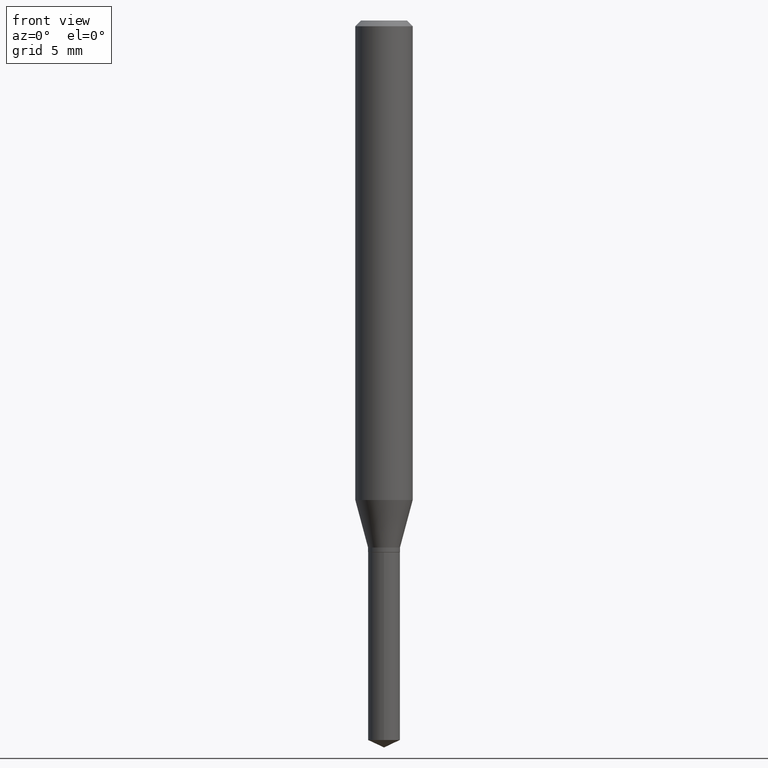
[diagram: clean part render]
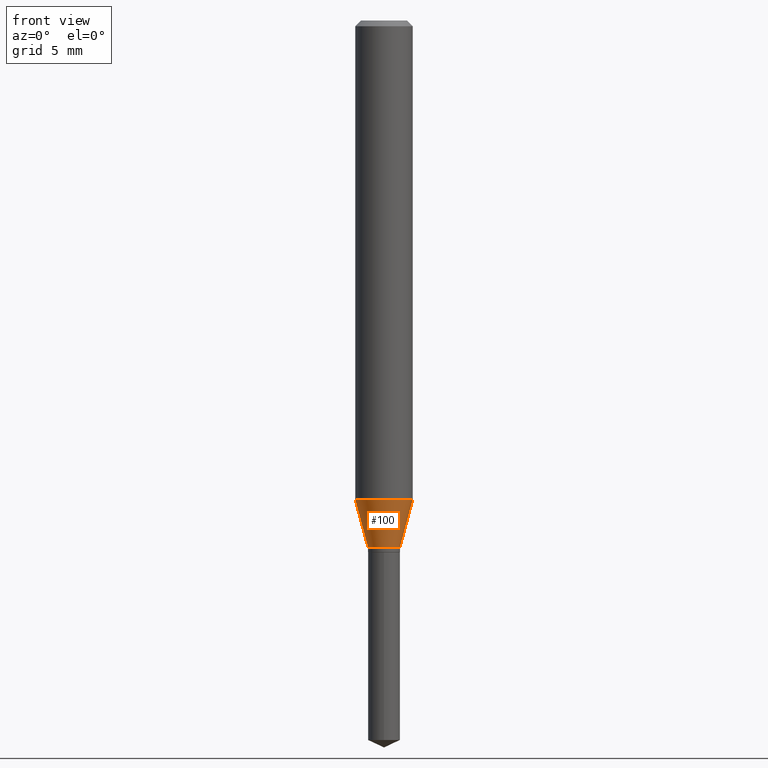
[diagram: same view with one face highlighted and labeled with its STEP entity id]
A machine part, front view. The second image highlights one B-rep face of the part: STEP entity #100.
In plain terms, the highlighted conical surface has half-angle 15 deg.
Its self-contained STEP definition (entity closure, byte-faithful):
#9 = ORIENTED_EDGE ( 'NONE', *, *, #81, .T. ) ;
#18 = CARTESIAN_POINT ( 'NONE',  ( 0.05905000000000011628, -3.857808499570329297E-15, -0.9868202688416950474 ) ) ;
#25 = CARTESIAN_POINT ( 'NONE',  ( -0.03284999999999999726, -3.553447371412082977E-15, -1.084600000000000009 ) ) ;
#27 = DIRECTION ( 'NONE',  ( -2.445468806185136597E-29, 3.491481338843145583E-15, 1.000000000000000000 ) ) ;
#32 = DIRECTION ( 'NONE',  ( 1.000000000000000000, -6.982962677686266711E-15, 0.000000000000000000 ) ) ;
#45 = EDGE_CURVE ( 'NONE', #268, #114, #254, .T. ) ;
#47 = ORIENTED_EDGE ( 'NONE', *, *, #45, .T. ) ;
#63 = DIRECTION ( 'NONE',  ( -0.2588190451025211836, 5.211531920934547886E-15, 0.9659258262890679791 ) ) ;
#72 = CARTESIAN_POINT ( 'NONE',  ( 0.03284999999999999726, -4.016250984071269671E-15, -1.084600000000000009 ) ) ;
#81 = EDGE_CURVE ( 'NONE', #340, #268, #414, .T. ) ;
#90 = VECTOR ( 'NONE', #178, 39.37007874015748854 ) ;
#96 = LINE ( 'NONE', #25, #237 ) ;
#100 = ADVANCED_FACE ( 'NONE', ( #431 ), #265, .T. ) ;
#103 = CARTESIAN_POINT ( 'NONE',  ( -0.05905000000000011628, -3.025889067986614883E-15, -0.9868202688416950474 ) ) ;
#114 = VERTEX_POINT ( 'NONE', #18 ) ;
#123 = DIRECTION ( 'NONE',  ( -2.445468806185136597E-29, 3.491481338843145583E-15, 1.000000000000000000 ) ) ;
#140 = EDGE_CURVE ( 'NONE', #340, #308, #96, .T. ) ;
#150 = ORIENTED_EDGE ( 'NONE', *, *, #140, .F. ) ;
#152 = CARTESIAN_POINT ( 'NONE',  ( -0.03284999999999999726, -3.569857333704645111E-15, -1.084600000000000009 ) ) ;
#154 = AXIS2_PLACEMENT_3D ( 'NONE', #213, #123, #312 ) ;
#164 = AXIS2_PLACEMENT_3D ( 'NONE', #205, #468, #274 ) ;
#173 = CIRCLE ( 'NONE', #478, 0.05905000000000011628 ) ;
#178 = DIRECTION ( 'NONE',  ( 0.2588190451025211836, 1.565188264969622559E-15, 0.9659258262890679791 ) ) ;
#205 = CARTESIAN_POINT ( 'NONE',  ( 2.652355467188399034E-29, -3.786860660109275425E-15, -1.084600000000000009 ) ) ;
#213 = CARTESIAN_POINT ( 'NONE',  ( 2.652355467188399034E-29, -3.786860660109275425E-15, -1.084600000000000009 ) ) ;
#237 = VECTOR ( 'NONE', #63, 39.37007874015748854 ) ;
#254 = LINE ( 'NONE', #72, #90 ) ;
#265 = CONICAL_SURFACE ( 'NONE', #164, 0.03284999999999999726, 0.2617993877991499074 ) ;
#268 = VERTEX_POINT ( 'NONE', #366 ) ;
#274 = DIRECTION ( 'NONE',  ( 1.000000000000000000, -6.982962677686273021E-15, 0.000000000000000000 ) ) ;
#304 = ORIENTED_EDGE ( 'NONE', *, *, #436, .F. ) ;
#308 = VERTEX_POINT ( 'NONE', #103 ) ;
#312 = DIRECTION ( 'NONE',  ( 1.000000000000000000, -6.982962677686273021E-15, 0.000000000000000000 ) ) ;
#323 = CARTESIAN_POINT ( 'NONE',  ( 2.413238184763595651E-29, -3.445464553452954771E-15, -0.9868202688416950474 ) ) ;
#340 = VERTEX_POINT ( 'NONE', #152 ) ;
#366 = CARTESIAN_POINT ( 'NONE',  ( 0.03284999999999999726, -4.016250984071269671E-15, -1.084600000000000009 ) ) ;
#386 = EDGE_LOOP ( 'NONE', ( #150, #9, #47, #304 ) ) ;
#414 = CIRCLE ( 'NONE', #154, 0.03284999999999999726 ) ;
#431 = FACE_OUTER_BOUND ( 'NONE', #386, .T. ) ;
#436 = EDGE_CURVE ( 'NONE', #308, #114, #173, .T. ) ;
#468 = DIRECTION ( 'NONE',  ( -2.445468806185136597E-29, 3.491481338843145583E-15, 1.000000000000000000 ) ) ;
#478 = AXIS2_PLACEMENT_3D ( 'NONE', #323, #27, #32 ) ;